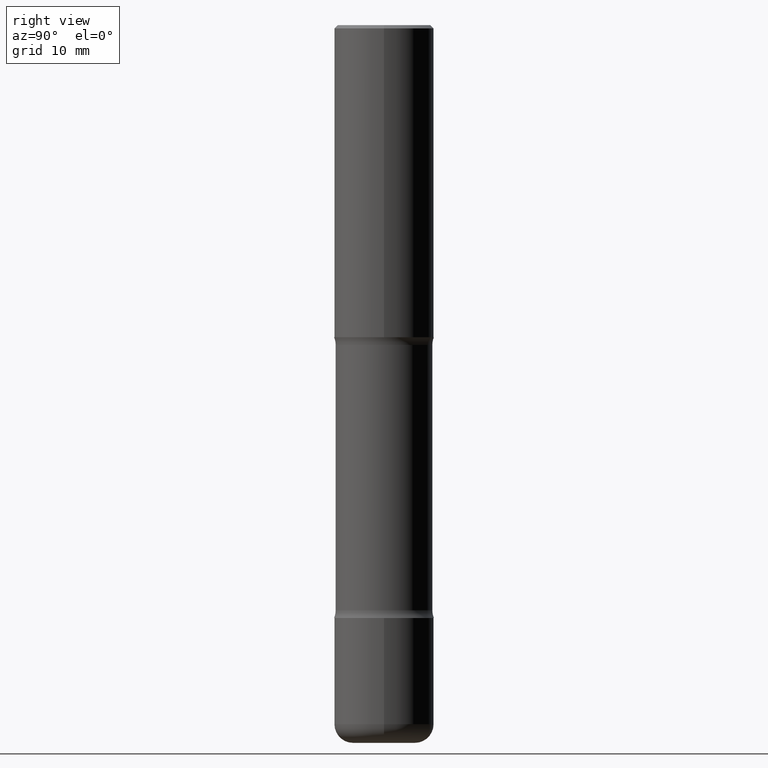
[diagram: clean part render]
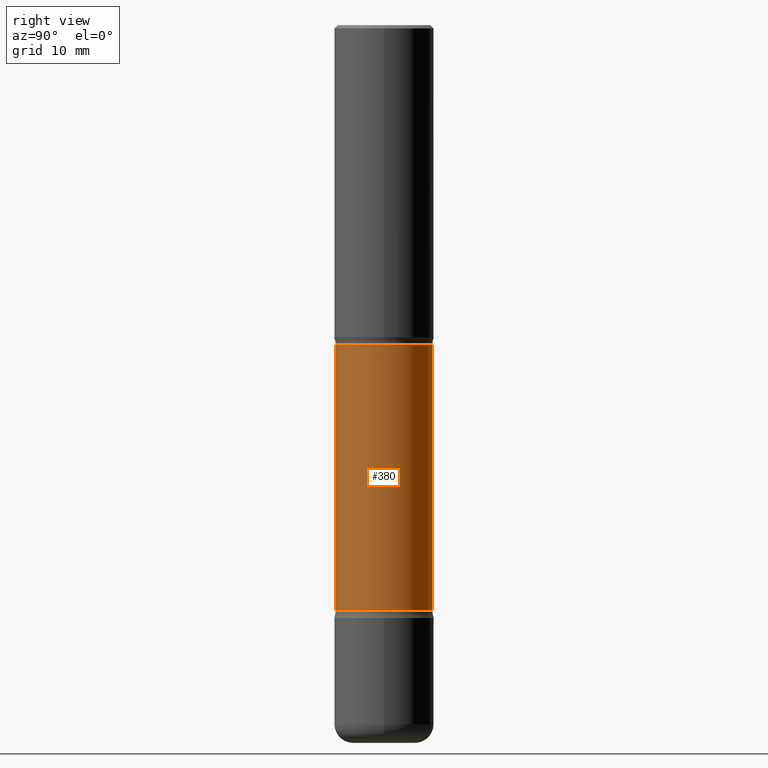
[diagram: same view with one face highlighted and labeled with its STEP entity id]
A machine part, right view. The second image highlights one B-rep face of the part: STEP entity #380.
In plain terms, the highlighted cylindrical surface (partial cylindrical patch) has radius 7.747 mm, axis along (0, -0, -1).
Its self-contained STEP definition (entity closure, byte-faithful):
#11 = CYLINDRICAL_SURFACE ( 'NONE', #312, 0.3049999999999999378 ) ;
#19 = FACE_OUTER_BOUND ( 'NONE', #172, .T. ) ;
#44 = CARTESIAN_POINT ( 'NONE',  ( 2.129803616694400804E-15, 0.3049999999999870037, -3.691327743043728571 ) ) ;
#60 = EDGE_CURVE ( 'NONE', #439, #558, #108, .T. ) ;
#62 = DIRECTION ( 'NONE',  ( 6.982962677686266711E-15, 1.000000000000000000, -3.582751467100674095E-15 ) ) ;
#73 = CARTESIAN_POINT ( 'NONE',  ( -2.126582866859184041E-15, -0.3050000000000072098, -2.017372256956273535 ) ) ;
#74 = VERTEX_POINT ( 'NONE', #44 ) ;
#92 = VERTEX_POINT ( 'NONE', #305 ) ;
#94 = EDGE_CURVE ( 'NONE', #439, #74, #268, .T. ) ;
#100 = VECTOR ( 'NONE', #534, 39.37007874015748143 ) ;
#108 = CIRCLE ( 'NONE', #433, 0.3049999999999999933 ) ;
#120 = CIRCLE ( 'NONE', #442, 0.3049999999999998823 ) ;
#134 = CARTESIAN_POINT ( 'NONE',  ( 4.823971588662791399E-29, -7.200355267551965208E-15, -2.017372256956274423 ) ) ;
#155 = DIRECTION ( 'NONE',  ( 2.508997697352003204E-29, -3.400504350852260021E-15, -1.000000000000000000 ) ) ;
#172 = EDGE_LOOP ( 'NONE', ( #227, #339, #378, #298 ) ) ;
#179 = DIRECTION ( 'NONE',  ( 6.982962677686266711E-15, 1.000000000000000000, -3.582751467100673306E-15 ) ) ;
#184 = EDGE_CURVE ( 'NONE', #558, #92, #271, .T. ) ;
#206 = CARTESIAN_POINT ( 'NONE',  ( 2.129803616694359388E-15, 0.3049999999999927769, -2.017372256956275756 ) ) ;
#227 = ORIENTED_EDGE ( 'NONE', *, *, #60, .T. ) ;
#233 = VECTOR ( 'NONE', #303, 39.37007874015748143 ) ;
#251 = EDGE_CURVE ( 'NONE', #74, #92, #120, .T. ) ;
#268 = LINE ( 'NONE', #482, #233 ) ;
#271 = LINE ( 'NONE', #400, #100 ) ;
#298 = ORIENTED_EDGE ( 'NONE', *, *, #94, .F. ) ;
#303 = DIRECTION ( 'NONE',  ( 2.508997697352003204E-29, -3.400504350852260021E-15, -1.000000000000000000 ) ) ;
#305 = CARTESIAN_POINT ( 'NONE',  ( -2.126582866859139076E-15, -0.3050000000000128164, -3.691327743043726350 ) ) ;
#312 = AXIS2_PLACEMENT_3D ( 'NONE', #360, #452, #535 ) ;
#339 = ORIENTED_EDGE ( 'NONE', *, *, #184, .T. ) ;
#360 = CARTESIAN_POINT ( 'NONE',  ( 1.112212721578861617E-28, -1.573639562940220266E-14, -4.527600000000000513 ) ) ;
#367 = CARTESIAN_POINT ( 'NONE',  ( 9.023922048725964423E-29, -1.289264818112535948E-14, -3.691327743043727239 ) ) ;
#378 = ORIENTED_EDGE ( 'NONE', *, *, #251, .F. ) ;
#380 = ADVANCED_FACE ( 'NONE', ( #19 ), #11, .T. ) ;
#400 = CARTESIAN_POINT ( 'NONE',  ( -2.092451889320205392E-15, -0.3050000000000157030, -4.527599999999998737 ) ) ;
#433 = AXIS2_PLACEMENT_3D ( 'NONE', #134, #480, #179 ) ;
#439 = VERTEX_POINT ( 'NONE', #206 ) ;
#442 = AXIS2_PLACEMENT_3D ( 'NONE', #367, #155, #62 ) ;
#452 = DIRECTION ( 'NONE',  ( 2.508997697352003204E-29, -3.400504350852260021E-15, -1.000000000000000000 ) ) ;
#480 = DIRECTION ( 'NONE',  ( 2.508997697352003204E-29, -3.400504350852260021E-15, -1.000000000000000000 ) ) ;
#482 = CARTESIAN_POINT ( 'NONE',  ( 2.129803616694422103E-15, 0.3049999999999842282, -4.527600000000001401 ) ) ;
#534 = DIRECTION ( 'NONE',  ( 2.508997697352003204E-29, -3.400504350852260021E-15, -1.000000000000000000 ) ) ;
#535 = DIRECTION ( 'NONE',  ( 6.982962677686266711E-15, 1.000000000000000000, -3.582751467100674095E-15 ) ) ;
#558 = VERTEX_POINT ( 'NONE', #73 ) ;